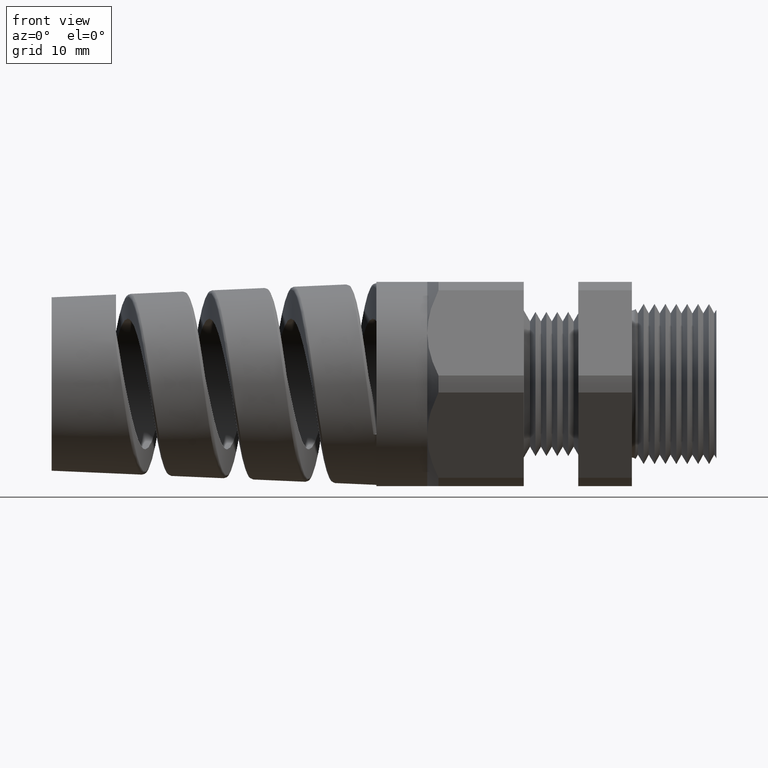
[diagram: clean part render]
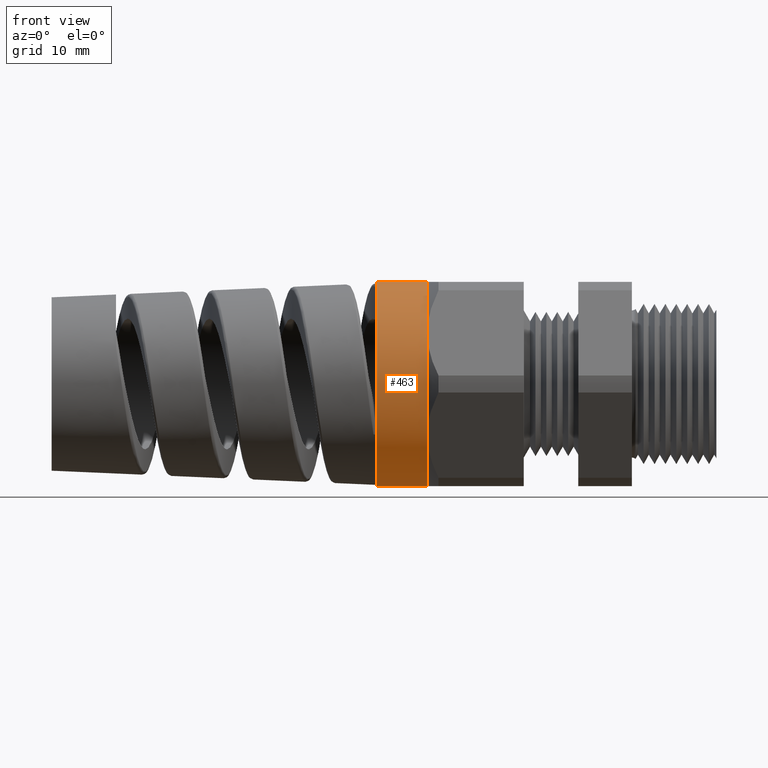
[diagram: same view with one face highlighted and labeled with its STEP entity id]
A machine part, front view. The second image highlights one B-rep face of the part: STEP entity #463.
In plain terms, the highlighted cylindrical surface (partial cylindrical patch) has radius 9.525 mm, axis along (1, 0, 0).
Its self-contained STEP definition (entity closure, byte-faithful):
#366 = VERTEX_POINT ( 'NONE', #1115 ) ;
#386 = VERTEX_POINT ( 'NONE', #1187 ) ;
#388 = ORIENTED_EDGE ( 'NONE', *, *, #7499, .F. ) ;
#389 = ORIENTED_EDGE ( 'NONE', *, *, #390, .F. ) ;
#390 = EDGE_CURVE ( 'NONE', #7556, #7290, #1186, .T. ) ;
#391 = ORIENTED_EDGE ( 'NONE', *, *, #7229, .T. ) ;
#392 = ORIENTED_EDGE ( 'NONE', *, *, #393, .F. ) ;
#393 = EDGE_CURVE ( 'NONE', #366, #7208, #1241, .T. ) ;
#394 = ORIENTED_EDGE ( 'NONE', *, *, #395, .F. ) ;
#395 = EDGE_CURVE ( 'NONE', #386, #366, #1236, .T. ) ;
#396 = ORIENTED_EDGE ( 'NONE', *, *, #397, .F. ) ;
#397 = EDGE_CURVE ( 'NONE', #7204, #386, #1231, .T. ) ;
#463 = ADVANCED_FACE ( 'NONE', ( #1346 ), #1345, .T. ) ;
#464 = EDGE_LOOP ( 'NONE', ( #388, #389, #391, #392, #394, #396 ) ) ;
#1115 = CARTESIAN_POINT ( 'NONE',  ( -1.061259842519684900, -0.3247595264191645600, -0.1875000000000000800 ) ) ;
#1184 = CARTESIAN_POINT ( 'NONE',  ( -1.248060804240437700, 0.0000000000000000000, 0.0000000000000000000 ) ) ;
#1185 = AXIS2_PLACEMENT_3D ( 'NONE', #1184, #1189, #1242 ) ;
#1186 = CIRCLE ( 'NONE', #1185, 0.3749999999999999400 ) ;
#1187 = CARTESIAN_POINT ( 'NONE',  ( -1.061259842519684900, -0.3247595264191646100, 0.1874999999999998300 ) ) ;
#1189 = DIRECTION ( 'NONE',  ( -1.000000000000000000, 0.0000000000000000000, 0.0000000000000000000 ) ) ;
#1227 = DIRECTION ( 'NONE',  ( 0.0000000000000000000, 0.0000000000000000000, -1.000000000000000000 ) ) ;
#1228 = DIRECTION ( 'NONE',  ( 1.000000000000000000, 0.0000000000000000000, 0.0000000000000000000 ) ) ;
#1229 = CARTESIAN_POINT ( 'NONE',  ( -1.061259842519684900, 0.0000000000000000000, 0.0000000000000000000 ) ) ;
#1230 = AXIS2_PLACEMENT_3D ( 'NONE', #1229, #1228, #1227 ) ;
#1231 = CIRCLE ( 'NONE', #1230, 0.3750000000000001100 ) ;
#1232 = DIRECTION ( 'NONE',  ( 0.0000000000000000000, 0.0000000000000000000, -1.000000000000000000 ) ) ;
#1233 = DIRECTION ( 'NONE',  ( 1.000000000000000000, 0.0000000000000000000, 0.0000000000000000000 ) ) ;
#1234 = CARTESIAN_POINT ( 'NONE',  ( -1.061259842519684900, 0.0000000000000000000, 0.0000000000000000000 ) ) ;
#1235 = AXIS2_PLACEMENT_3D ( 'NONE', #1234, #1233, #1232 ) ;
#1236 = CIRCLE ( 'NONE', #1235, 0.3750000000000001100 ) ;
#1237 = DIRECTION ( 'NONE',  ( 0.0000000000000000000, 0.0000000000000000000, -1.000000000000000000 ) ) ;
#1238 = DIRECTION ( 'NONE',  ( 1.000000000000000000, 0.0000000000000000000, 0.0000000000000000000 ) ) ;
#1239 = CARTESIAN_POINT ( 'NONE',  ( -1.061259842519684900, 0.0000000000000000000, 0.0000000000000000000 ) ) ;
#1240 = AXIS2_PLACEMENT_3D ( 'NONE', #1239, #1238, #1237 ) ;
#1241 = CIRCLE ( 'NONE', #1240, 0.3750000000000001100 ) ;
#1242 = DIRECTION ( 'NONE',  ( 0.0000000000000000000, 0.0000000000000000000, 1.000000000000000000 ) ) ;
#1340 = DIRECTION ( 'NONE',  ( 0.0000000000000000000, 0.0000000000000000000, -1.000000000000000000 ) ) ;
#1341 = DIRECTION ( 'NONE',  ( 1.000000000000000000, 0.0000000000000000000, 0.0000000000000000000 ) ) ;
#1342 = CARTESIAN_POINT ( 'NONE',  ( 0.09602717987635048200, 0.0000000000000000000, 0.0000000000000000000 ) ) ;
#1343 = AXIS2_PLACEMENT_3D ( 'NONE', #1342, #1341, #1340 ) ;
#1345 = CYLINDRICAL_SURFACE ( 'NONE', #1343, 0.3750000000000001100 ) ;
#1346 = FACE_OUTER_BOUND ( 'NONE', #464, .T. ) ;
#2477 = CARTESIAN_POINT ( 'NONE',  ( -1.061259842519684900, 0.0000000000000000000, -0.3750000000000001100 ) ) ;
#2483 = CARTESIAN_POINT ( 'NONE',  ( -1.061259842519684900, 0.0000000000000000000, 0.3749999999999999400 ) ) ;
#2533 = DIRECTION ( 'NONE',  ( 1.000000000000000000, 0.0000000000000000000, 0.0000000000000000000 ) ) ;
#2534 = VECTOR ( 'NONE', #2533, 39.37007874015748100 ) ;
#2535 = CARTESIAN_POINT ( 'NONE',  ( 0.09602717987635048200, 0.0000000000000000000, -0.3750000000000001100 ) ) ;
#2536 = LINE ( 'NONE', #2535, #2534 ) ;
#2733 = CARTESIAN_POINT ( 'NONE',  ( -1.248060804240437700, 4.592425496802575500E-017, 0.3749999999999999400 ) ) ;
#3927 = DIRECTION ( 'NONE',  ( 1.000000000000000000, 0.0000000000000000000, 0.0000000000000000000 ) ) ;
#3928 = VECTOR ( 'NONE', #3927, 39.37007874015748100 ) ;
#3947 = CARTESIAN_POINT ( 'NONE',  ( 0.09602717987635048200, 4.592425496802576100E-017, 0.3750000000000001100 ) ) ;
#3948 = LINE ( 'NONE', #3947, #3928 ) ;
#4082 = CARTESIAN_POINT ( 'NONE',  ( -1.248060804240437700, 0.0000000000000000000, -0.3749999999999999400 ) ) ;
#7204 = VERTEX_POINT ( 'NONE', #2483 ) ;
#7208 = VERTEX_POINT ( 'NONE', #2477 ) ;
#7229 = EDGE_CURVE ( 'NONE', #7556, #7208, #2536, .T. ) ;
#7290 = VERTEX_POINT ( 'NONE', #2733 ) ;
#7499 = EDGE_CURVE ( 'NONE', #7290, #7204, #3948, .T. ) ;
#7556 = VERTEX_POINT ( 'NONE', #4082 ) ;